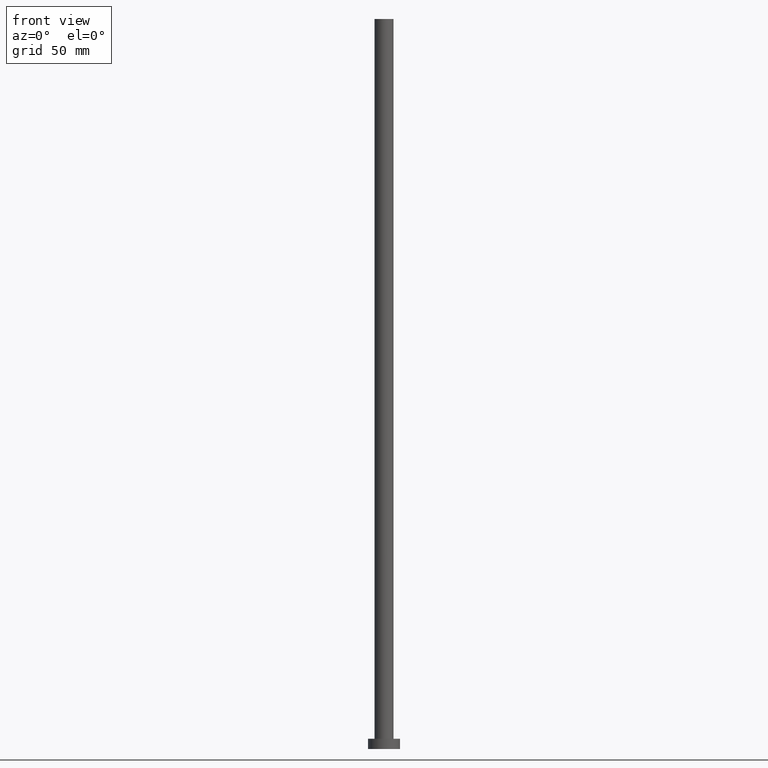
[diagram: clean part render]
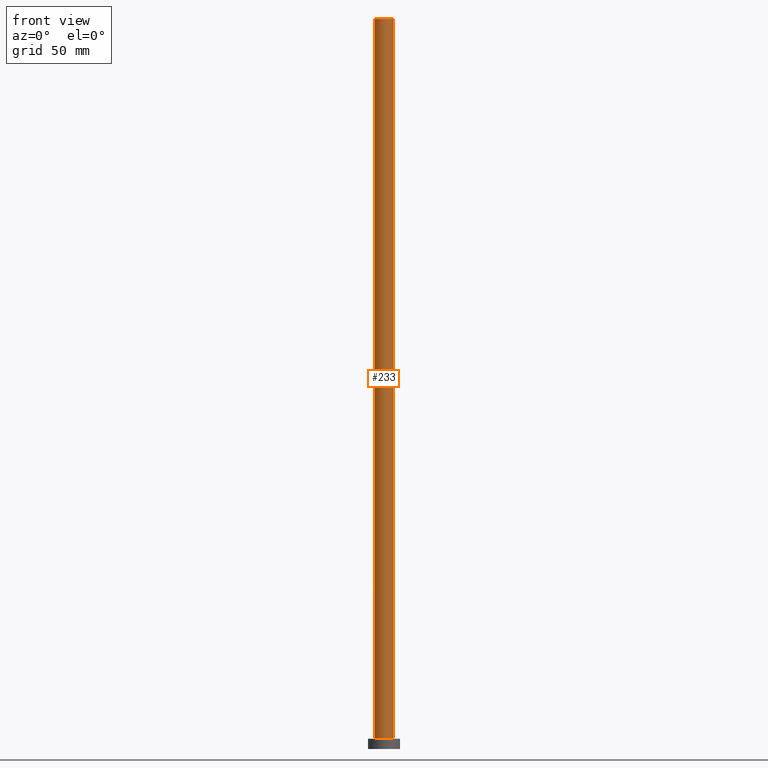
[diagram: same view with one face highlighted and labeled with its STEP entity id]
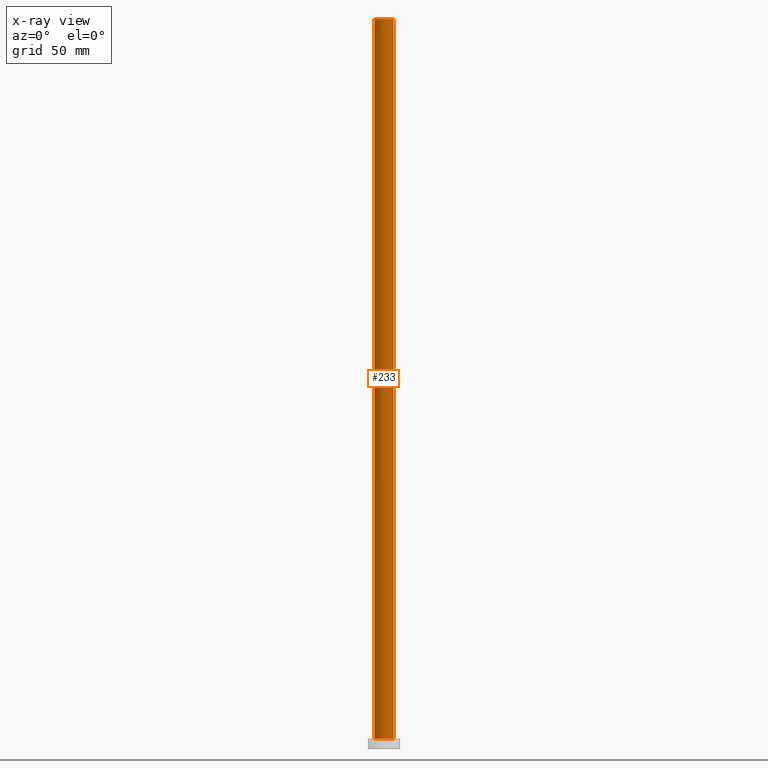
[diagram: x-ray of the same camera — body ghosted, the highlighted face saturated]
A machine part, front view. The second image highlights one B-rep face of the part: STEP entity #233.
The next image is the same camera in x-ray: the body ghosted, the highlighted face saturated — about 0% of this face is hidden behind the body in this view.
In plain terms, the highlighted cylindrical surface (edge-blend (fillet) strip) has radius 6.5 mm, axis along (-0, -0, -1).
Its self-contained STEP definition (entity closure, byte-faithful):
#1 = DIRECTION ( 'NONE',  ( 1.000000000000000000, 0.000000000000000000, 0.000000000000000000 ) ) ;
#6 = DIRECTION ( 'NONE',  ( -0.000000000000000000, -0.000000000000000000, -1.000000000000000000 ) ) ;
#10 = CARTESIAN_POINT ( 'NONE',  ( 6.500000000000000888, 7.960204194457796463E-16, 7.000000000000000000 ) ) ;
#14 = VECTOR ( 'NONE', #6, 1000.000000000000000 ) ;
#18 = VERTEX_POINT ( 'NONE', #103 ) ;
#23 = CIRCLE ( 'NONE', #124, 6.500000000000000888 ) ;
#27 = AXIS2_PLACEMENT_3D ( 'NONE', #46, #175, #173 ) ;
#38 = CYLINDRICAL_SURFACE ( 'NONE', #27, 6.500000000000000888 ) ;
#46 = CARTESIAN_POINT ( 'NONE',  ( 0.000000000000000000, 0.000000000000000000, 500.0000000000000000 ) ) ;
#48 = LINE ( 'NONE', #50, #74 ) ;
#50 = CARTESIAN_POINT ( 'NONE',  ( 6.500000000000000888, 7.960204194457796463E-16, 500.0000000000000000 ) ) ;
#53 = EDGE_LOOP ( 'NONE', ( #179, #60, #220, #58 ) ) ;
#55 = DIRECTION ( 'NONE',  ( 0.000000000000000000, 0.000000000000000000, 1.000000000000000000 ) ) ;
#58 = ORIENTED_EDGE ( 'NONE', *, *, #248, .T. ) ;
#60 = ORIENTED_EDGE ( 'NONE', *, *, #229, .F. ) ;
#64 = EDGE_CURVE ( 'NONE', #18, #156, #142, .T. ) ;
#65 = CARTESIAN_POINT ( 'NONE',  ( -6.500000000000000888, 0.000000000000000000, 500.0000000000000000 ) ) ;
#70 = CARTESIAN_POINT ( 'NONE',  ( 6.500000000000000888, 7.960204194457796463E-16, 500.0000000000000000 ) ) ;
#74 = VECTOR ( 'NONE', #203, 1000.000000000000000 ) ;
#93 = EDGE_CURVE ( 'NONE', #211, #150, #48, .T. ) ;
#103 = CARTESIAN_POINT ( 'NONE',  ( -6.500000000000000888, 0.000000000000000000, 500.0000000000000000 ) ) ;
#119 = CARTESIAN_POINT ( 'NONE',  ( 0.000000000000000000, 0.000000000000000000, 7.000000000000000000 ) ) ;
#124 = AXIS2_PLACEMENT_3D ( 'NONE', #218, #55, #193 ) ;
#134 = FACE_OUTER_BOUND ( 'NONE', #53, .T. ) ;
#142 = LINE ( 'NONE', #65, #14 ) ;
#150 = VERTEX_POINT ( 'NONE', #10 ) ;
#156 = VERTEX_POINT ( 'NONE', #187 ) ;
#173 = DIRECTION ( 'NONE',  ( -1.000000000000000000, 0.000000000000000000, 0.000000000000000000 ) ) ;
#175 = DIRECTION ( 'NONE',  ( -0.000000000000000000, -0.000000000000000000, -1.000000000000000000 ) ) ;
#179 = ORIENTED_EDGE ( 'NONE', *, *, #93, .F. ) ;
#187 = CARTESIAN_POINT ( 'NONE',  ( -6.500000000000000888, 0.000000000000000000, 7.000000000000000000 ) ) ;
#193 = DIRECTION ( 'NONE',  ( 1.000000000000000000, 0.000000000000000000, 0.000000000000000000 ) ) ;
#203 = DIRECTION ( 'NONE',  ( -0.000000000000000000, -0.000000000000000000, -1.000000000000000000 ) ) ;
#211 = VERTEX_POINT ( 'NONE', #70 ) ;
#218 = CARTESIAN_POINT ( 'NONE',  ( 0.000000000000000000, 0.000000000000000000, 500.0000000000000000 ) ) ;
#220 = ORIENTED_EDGE ( 'NONE', *, *, #64, .T. ) ;
#229 = EDGE_CURVE ( 'NONE', #18, #211, #23, .T. ) ;
#230 = AXIS2_PLACEMENT_3D ( 'NONE', #119, #252, #1 ) ;
#233 = ADVANCED_FACE ( 'NONE', ( #134 ), #38, .T. ) ;
#242 = CIRCLE ( 'NONE', #230, 6.500000000000000888 ) ;
#248 = EDGE_CURVE ( 'NONE', #156, #150, #242, .T. ) ;
#252 = DIRECTION ( 'NONE',  ( 0.000000000000000000, 0.000000000000000000, 1.000000000000000000 ) ) ;